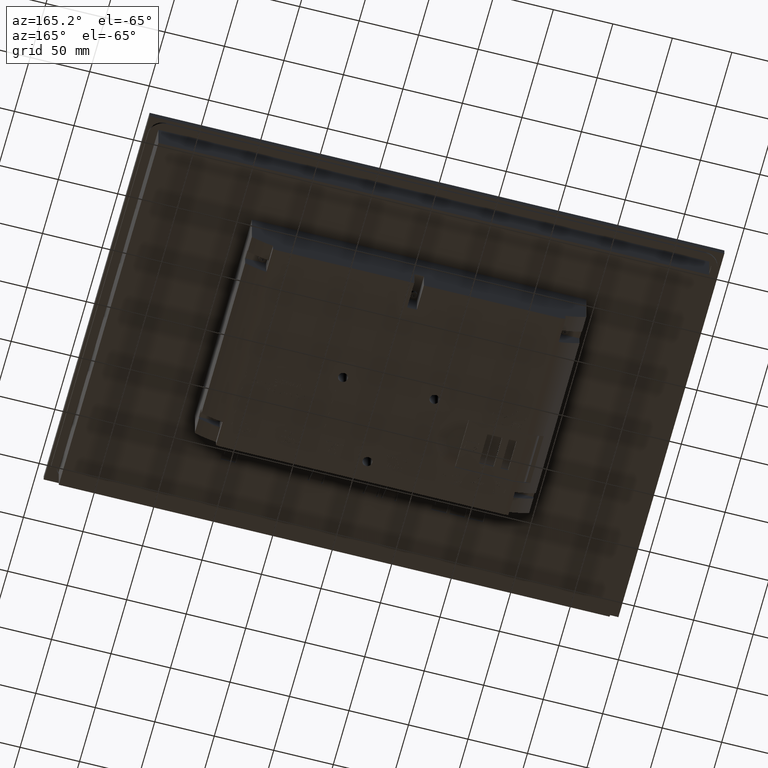
[diagram: clean part render]
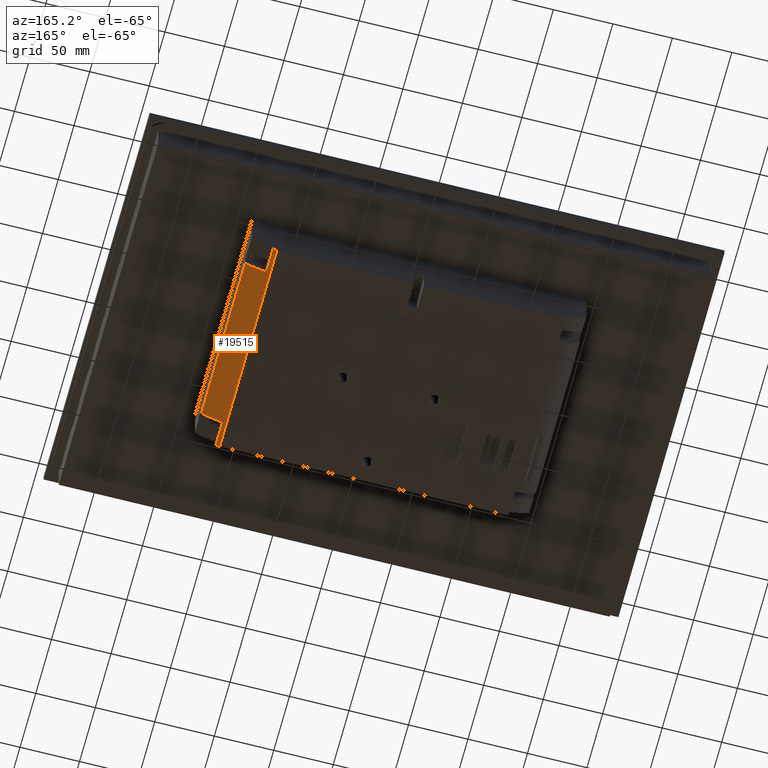
[diagram: same view with one face highlighted and labeled with its STEP entity id]
A machine part, auxiliary view. The second image highlights one B-rep face of the part: STEP entity #19515.
In plain terms, the highlighted cylindrical surface (partial cylindrical patch) has radius 60.0001 mm, axis along (0, -1, 0).
Its self-contained STEP definition (entity closure, byte-faithful):
#3957=LINE('',#66214,#9293);
#3977=LINE('',#66258,#9313);
#3979=LINE('',#66262,#9315);
#3980=LINE('',#66267,#9316);
#9293=VECTOR('',#54661,1.);
#9313=VECTOR('',#54691,1.);
#9315=VECTOR('',#54695,1.);
#9316=VECTOR('',#54700,1.);
#14714=FACE_OUTER_BOUND('',#23192,.T.);
#19515=ADVANCED_FACE('',(#14714),#22197,.T.);
#22197=CYLINDRICAL_SURFACE('',#51025,60.00007089151);
#23192=EDGE_LOOP('',(#26995,#26996,#26997,#26998,#26999,#27000,#27001,#27002));
#26995=ORIENTED_EDGE('',*,*,#44155,.F.);
#26996=ORIENTED_EDGE('',*,*,#44156,.F.);
#26997=ORIENTED_EDGE('',*,*,#44153,.T.);
#26998=ORIENTED_EDGE('',*,*,#44157,.F.);
#26999=ORIENTED_EDGE('',*,*,#44158,.F.);
#27000=ORIENTED_EDGE('',*,*,#44159,.T.);
#27001=ORIENTED_EDGE('',*,*,#44130,.F.);
#27002=ORIENTED_EDGE('',*,*,#44143,.F.);
#39581=VERTEX_POINT('',#66213);
#39582=VERTEX_POINT('',#66215);
#39591=VERTEX_POINT('',#66237);
#39600=VERTEX_POINT('',#66257);
#39601=VERTEX_POINT('',#66259);
#39602=VERTEX_POINT('',#66263);
#39603=VERTEX_POINT('',#66266);
#39604=VERTEX_POINT('',#66268);
#44130=EDGE_CURVE('',#39581,#39582,#3957,.T.);
#44143=EDGE_CURVE('',#39591,#39581,#50395,.T.);
#44153=EDGE_CURVE('',#39601,#39600,#3977,.T.);
#44155=EDGE_CURVE('',#39602,#39591,#3979,.T.);
#44156=EDGE_CURVE('',#39601,#39602,#50396,.T.);
#44157=EDGE_CURVE('',#39603,#39600,#50397,.T.);
#44158=EDGE_CURVE('',#39604,#39603,#3980,.T.);
#44159=EDGE_CURVE('',#39604,#39582,#50398,.T.);
#50395=CIRCLE('',#51019,60.00007089151);
#50396=CIRCLE('',#51022,60.00007089151);
#50397=CIRCLE('',#51023,60.00007089151);
#50398=CIRCLE('',#51024,60.00007089151);
#51019=AXIS2_PLACEMENT_3D('',#66238,#54678,#54679);
#51022=AXIS2_PLACEMENT_3D('',#66264,#54696,#54697);
#51023=AXIS2_PLACEMENT_3D('',#66265,#54698,#54699);
#51024=AXIS2_PLACEMENT_3D('',#66269,#54701,#54702);
#51025=AXIS2_PLACEMENT_3D('',#66270,#54703,#54704);
#54661=DIRECTION('',(0.,1.,0.));
#54678=DIRECTION('',(0.,-1.,0.));
#54679=DIRECTION('',(0.,0.,1.));
#54691=DIRECTION('',(0.,1.,0.));
#54695=DIRECTION('',(0.,-1.,0.));
#54696=DIRECTION('',(0.,-1.,0.));
#54697=DIRECTION('',(0.,0.,-1.));
#54698=DIRECTION('',(0.,1.,0.));
#54699=DIRECTION('',(0.,0.,1.));
#54700=DIRECTION('',(0.,-1.,0.));
#54701=DIRECTION('',(0.,-1.,0.));
#54702=DIRECTION('',(-1.,0.,1.73472142635978E-016));
#54703=DIRECTION('',(0.,1.,0.));
#54704=DIRECTION('',(0.,0.,1.));
#66213=CARTESIAN_POINT('',(-119.500005295459,-125.58730192373,-75.5999999998899));
#66214=CARTESIAN_POINT('',(-119.500005295459,-143.61269807627,-75.5999999998899));
#66215=CARTESIAN_POINT('',(-119.500005295459,56.38730192373,-75.6));
#66237=CARTESIAN_POINT('',(-122.72475017102,-125.58730192373,-74.9113688106157));
#66238=CARTESIAN_POINT('',(-108.586854133333,-125.58730192373,-16.6007488292283));
#66257=CARTESIAN_POINT('',(-140.4873019237,35.00470192373,-67.4177729231314));
#66258=CARTESIAN_POINT('',(-140.4873019237,-143.61269807627,-67.4177729231314));
#66259=CARTESIAN_POINT('',(-140.4873019237,-104.20470192373,-67.4177729231314));
#66262=CARTESIAN_POINT('',(-122.72475017102,-143.61269807627,-74.9113688106157));
#66263=CARTESIAN_POINT('',(-122.72475017102,-104.20470192373,-74.9113688106157));
#66264=CARTESIAN_POINT('',(-108.586854133333,-104.20470192373,-16.6007488292283));
#66265=CARTESIAN_POINT('',(-108.586854133333,35.00470192373,-16.6007488292283));
#66266=CARTESIAN_POINT('',(-122.72475017102,35.00470192373,-74.9113688106157));
#66267=CARTESIAN_POINT('',(-122.72475017102,-143.61269807627,-74.9113688106157));
#66268=CARTESIAN_POINT('',(-122.72475017102,56.38730192373,-74.9113688106157));
#66269=CARTESIAN_POINT('',(-108.586854133333,56.38730192373,-16.6007488292283));
#66270=CARTESIAN_POINT('',(-108.586854133333,-143.61269807627,-16.6007488292283));